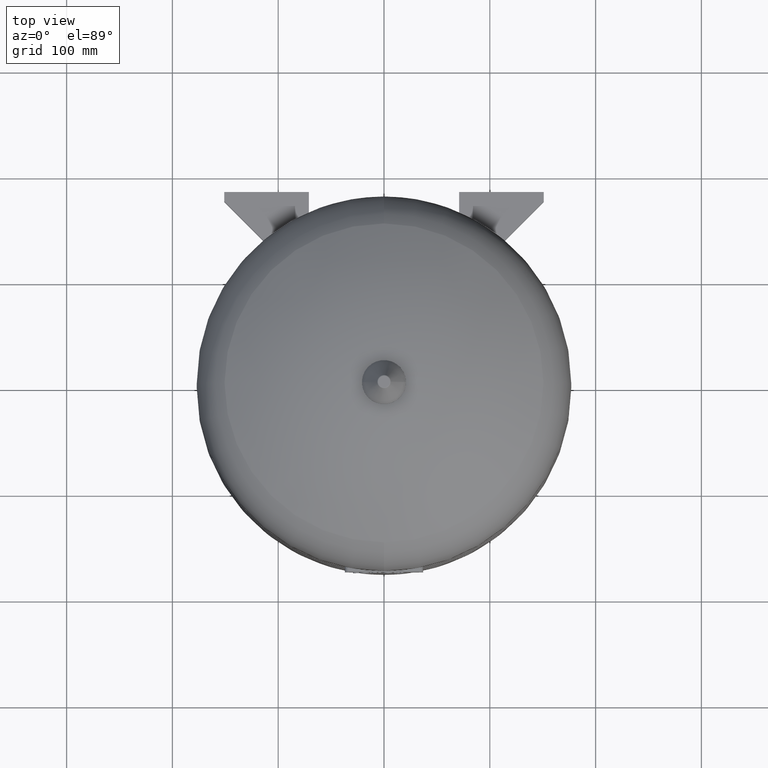
[diagram: clean part render]
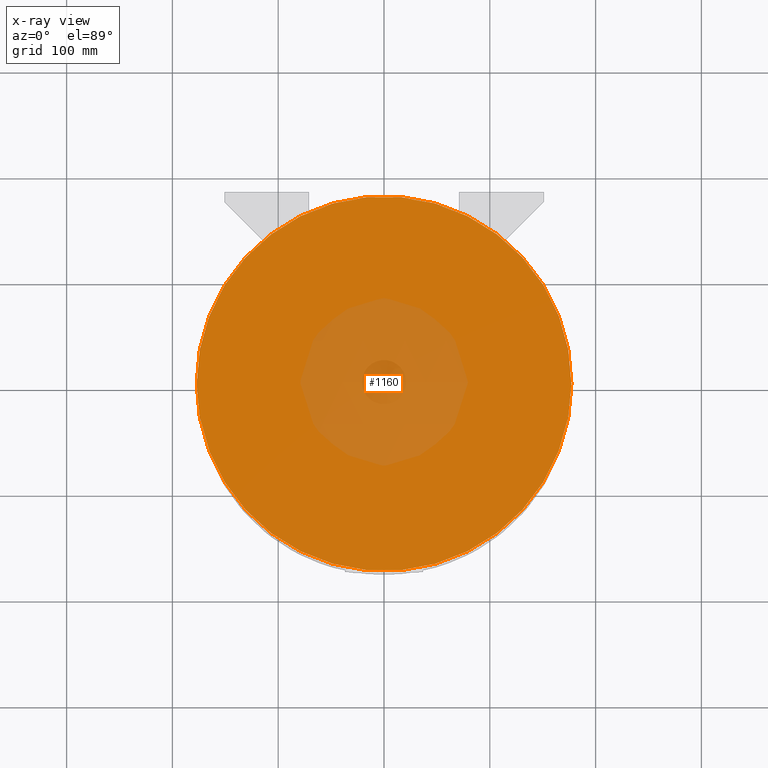
[diagram: x-ray — body ghosted, one internal face saturated and labeled with its STEP entity id]
A machine part, top view, then the same camera in x-ray: the body is ghosted and one INTERNAL B-rep face — a face not visible from any outside direction — is saturated and labeled: STEP entity #1160.
In plain terms, the highlighted planar face has unit normal (0, 0, 1).
Its self-contained STEP definition (entity closure, byte-faithful):
#950=CARTESIAN_POINT('',(177.0,0.0,354.99999999999994));
#951=VERTEX_POINT('',#950);
#960=CARTESIAN_POINT('',(-177.0,-2.167553E-014,354.99999999999994));
#961=VERTEX_POINT('',#960);
#962=CARTESIAN_POINT('',(0.0,0.0,354.99999999999994));
#963=DIRECTION('',(0.0,0.0,1.0));
#964=DIRECTION('',(1.0,0.0,0.0));
#965=AXIS2_PLACEMENT_3D('',#962,#963,#964);
#966=CIRCLE('',#965,177.0);
#967=EDGE_CURVE('',#961,#951,#966,.T.);
#1141=CARTESIAN_POINT('',(0.0,0.0,354.99999999999994));
#1142=DIRECTION('',(0.0,0.0,1.0));
#1143=DIRECTION('',(1.0,0.0,0.0));
#1144=AXIS2_PLACEMENT_3D('',#1141,#1142,#1143);
#1145=CIRCLE('',#1144,177.0);
#1146=EDGE_CURVE('',#951,#961,#1145,.T.);
#1151=CARTESIAN_POINT('',(88.5,0.0,355.0));
#1152=DIRECTION('',(0.0,0.0,1.0));
#1153=DIRECTION('',(1.0,0.0,0.0));
#1154=AXIS2_PLACEMENT_3D('',#1151,#1152,#1153);
#1155=PLANE('',#1154);
#1156=ORIENTED_EDGE('',*,*,#1146,.T.);
#1157=ORIENTED_EDGE('',*,*,#967,.T.);
#1158=EDGE_LOOP('',(#1156,#1157));
#1159=FACE_OUTER_BOUND('',#1158,.T.);
#1160=ADVANCED_FACE('',(#1159),#1155,.T.);